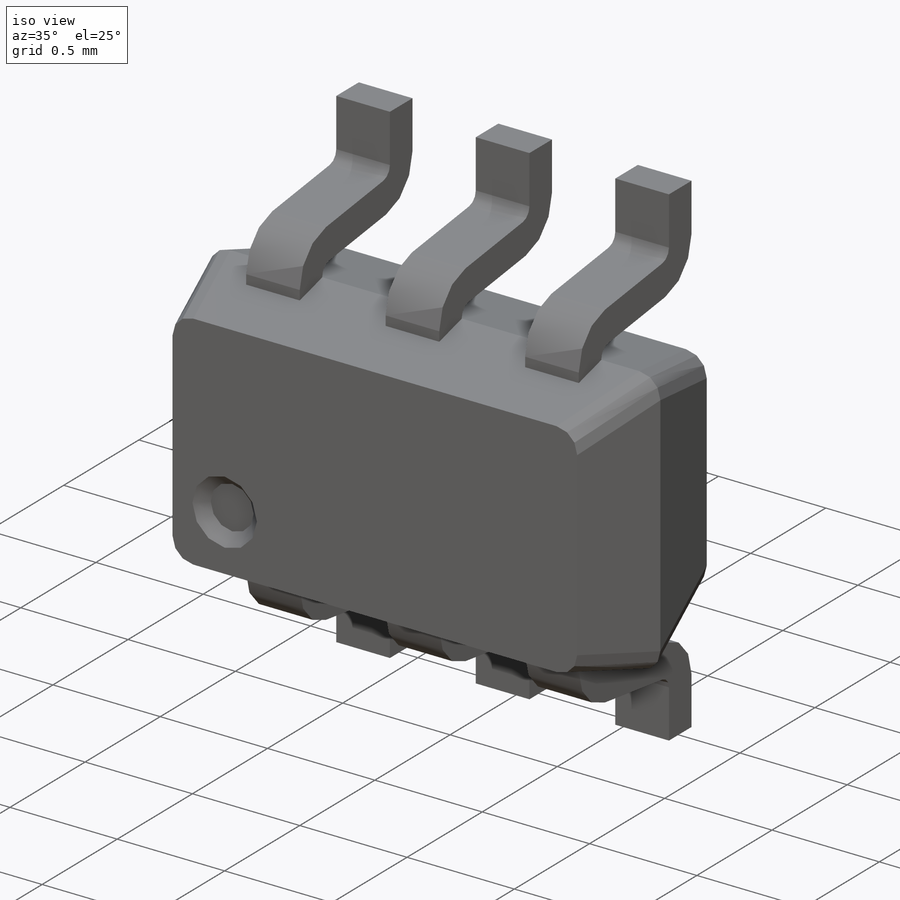
[diagram: iso view]
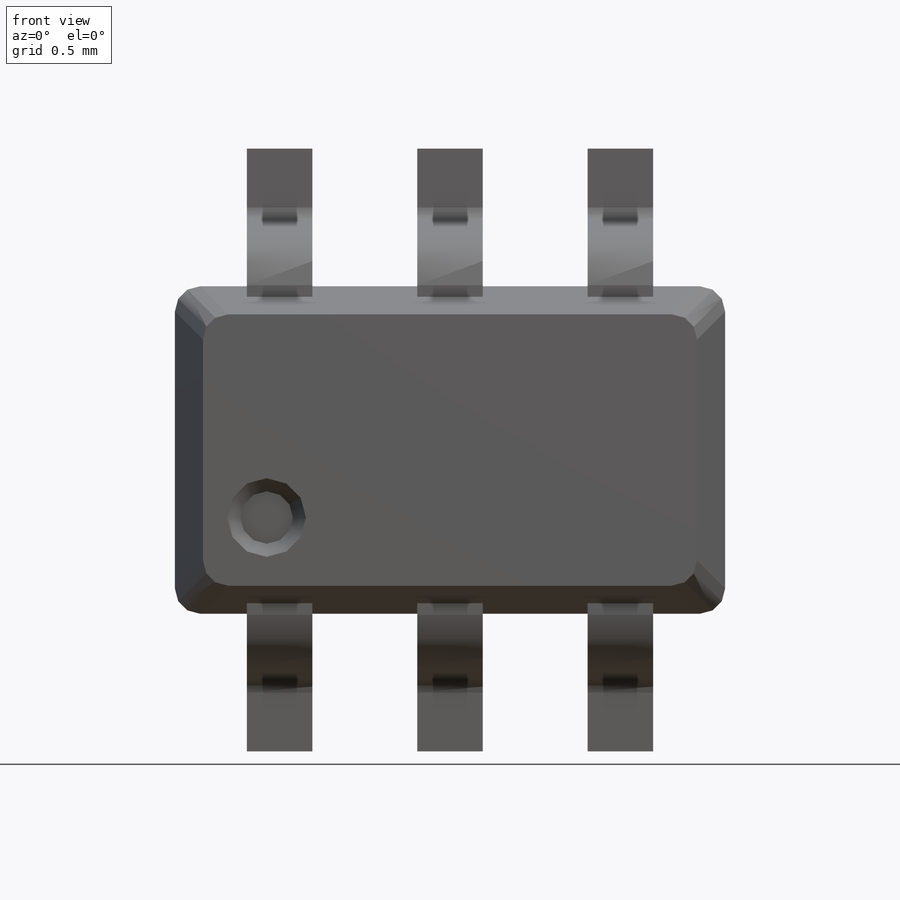
[diagram: front view]
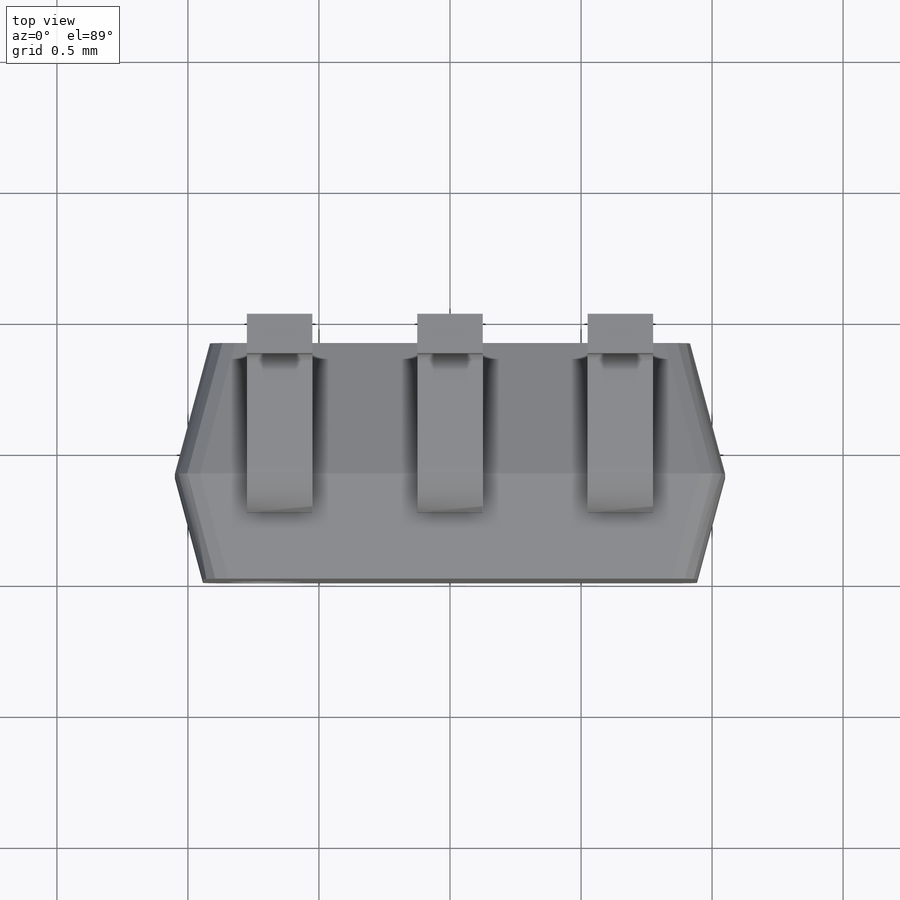
[diagram: top view]
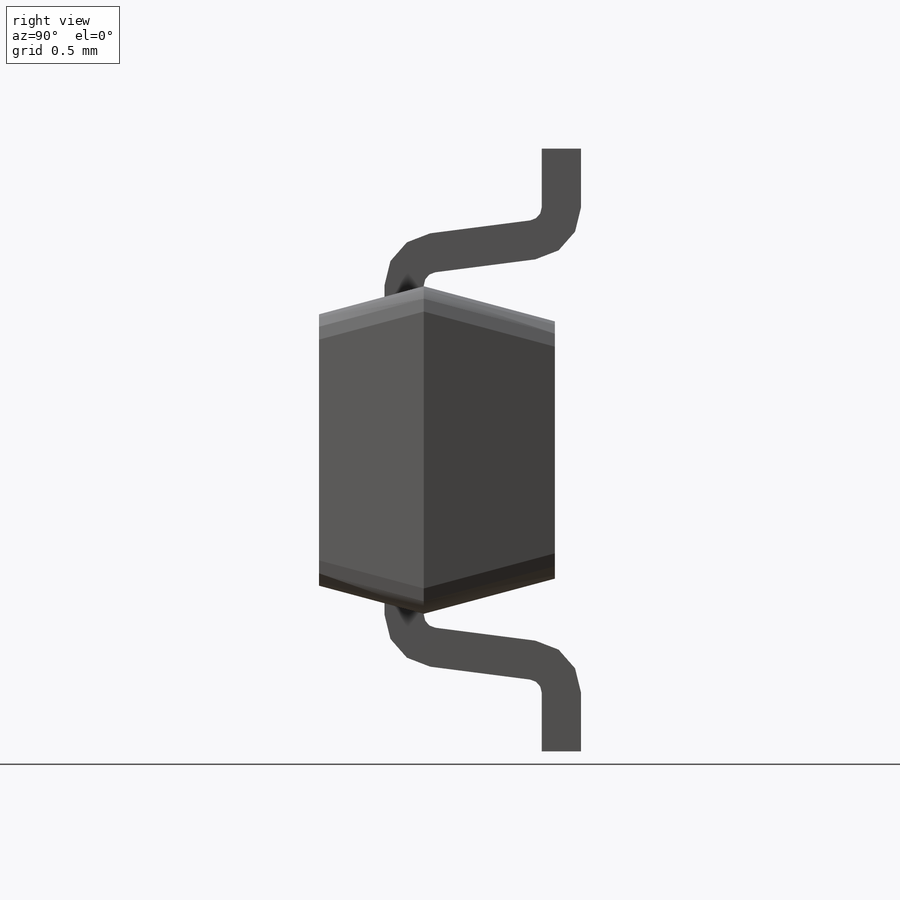
[diagram: right view]
SOLIDWORKS PART (.sldprt)
format: sldprt  version: not decoded by parser v0  size: 354,816 bytes
history: native  units: mm
features: sketch x4, plane x3, extrude x3, pattern_linear x2, material x1, fillet x1, cut_extrude x1 (+13 scaffold rows collapsed)
feature tree (28):
  scaffold x13  (default folders/planes/origin — collapsed)
  material  "Material <not specified>"
  plane  "Спереди"
  plane  "Сверху"
  plane  "Справа"
  sketch  "Эскиз1"  dims[D1=1.3mm]
  extrude  "Вытянуть1"  Depth=0.4mm
  sketch  "Эскиз2"  dims[c1.D1=0.1mm c1.D2=0.05mm c1.D3=0.22mm c1.D4=0.27mm c2.D1=0.05mm c2.D2=0.2mm c2.D3=0.05mm c3.D1=0.15mm]
  extrude  "Вытянуть4"  Depth=0.125mm
  extrude  "Вытянуть5"  [1 undecoded]
  sketch  "Эскиз2<4>"  dims[D1=0.125mm D2=0.125mm D19=0.65mm]
  pattern_linear  "Линейный массив2"  Count1=3 Count2=1 Spacing1=0.65mm Spacing2=10mm
  pattern_linear  "Линейный массив3"  Count1=3 Count2=1 Spacing1=0.65mm Spacing2=10mm
  fillet  "Скругление3"  Radius=0.1mm
  sketch  "Эскиз3"  dims[D1=~0.147534mm]
  cut_extrude  "Вытянуть6"  Depth=0.05mm
decode coverage: 10 of 11 modeling features carry decoded parameters
note: ~ marks probable driven/reference dimensions
note: 1 parameter value undecoded
note: suppression state not decoded; provenance and decode notes live in map.json
